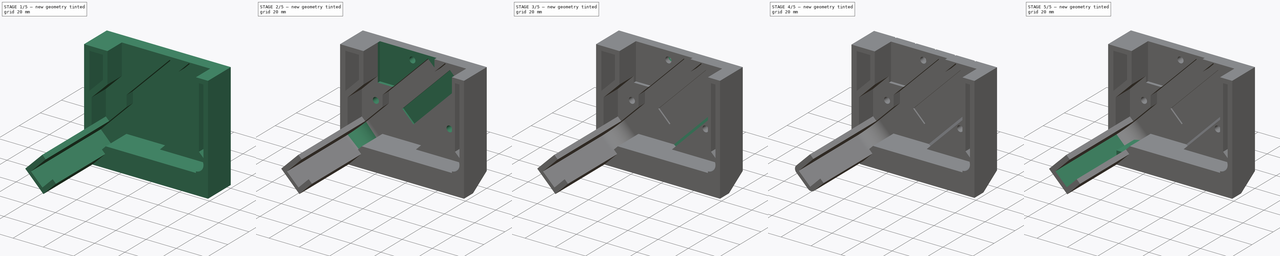
[diagram: build sequence overview — one tinted view per stage of 5, left to right]
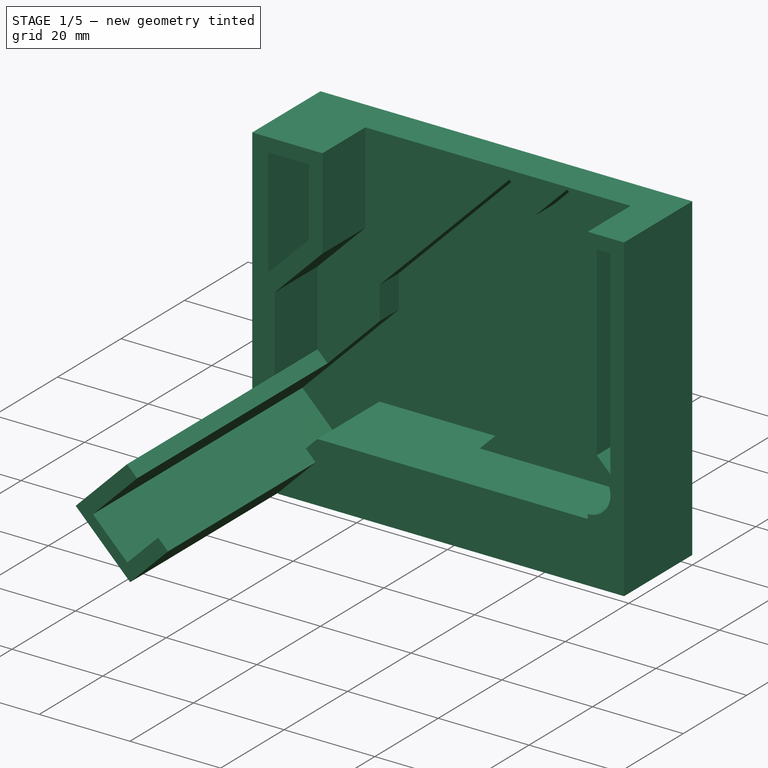
[diagram: stage 1 of 5 — iso view after this stage's code; geometry added in this stage tinted green]
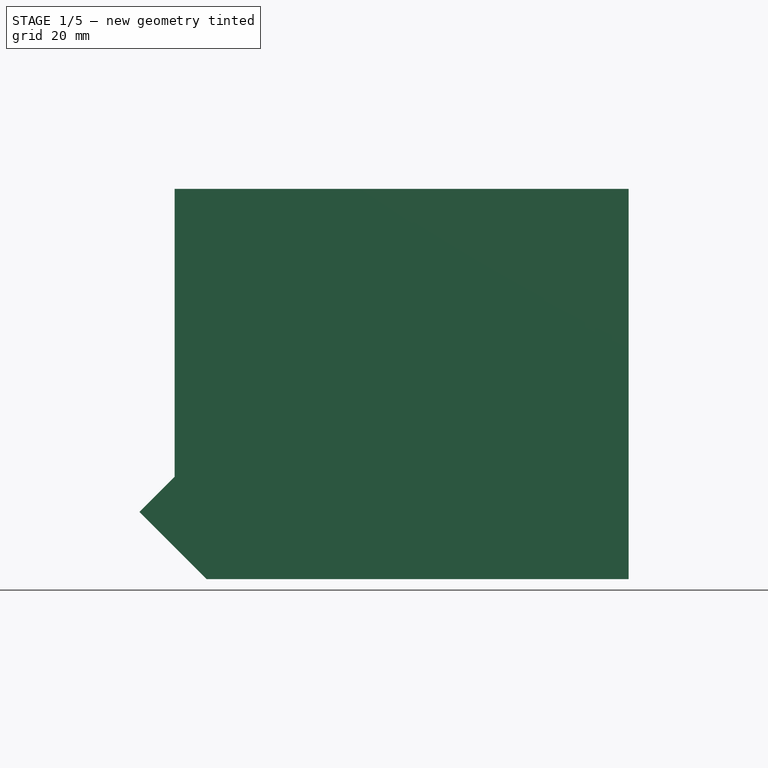
[diagram: stage 1 of 5 — front view after this stage's code; geometry added in this stage tinted green]
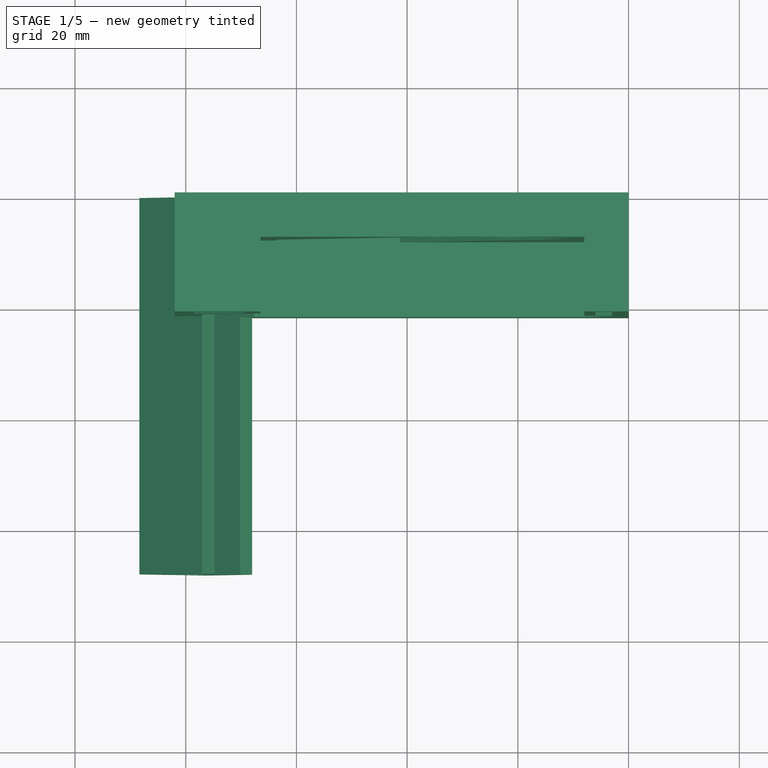
[diagram: stage 1 of 5 — top view after this stage's code; geometry added in this stage tinted green]
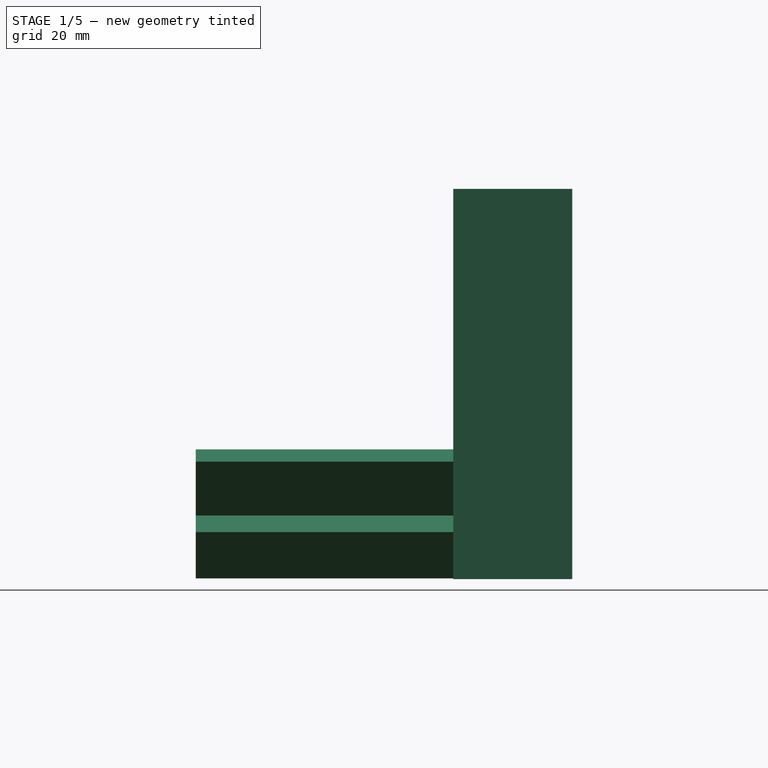
[diagram: stage 1 of 5 — right view after this stage's code; geometry added in this stage tinted green]
FCSTD DOCUMENT  (FreeCAD 0.17R13662 (Git))
Label: extruder_cap_v2.1
License: CreativeCommons Attribution-ShareAlike
LicenseURL: http://creativecommons.org/licenses/by-sa/4.0/
objects: Sketcher::SketchObject×13, PartDesign::Pocket×12, PartDesign::Chamfer×4, PartDesign::Fillet×3, PartDesign::Pad×2, Part::FeaturePython×1, PartDesign::Body×1
note: 50 computed .brp shape members not serialized (recipe doc carries the construction recipe); baked Part::Feature solids carry a one-line shape summary decoded from their .brp

FEATURE [Sketcher::SketchObject] Sketch
  MapMode = 5
  Placement = pos=(0,0,0) rot=(1,0,0;1.5708rad)
  Support = -> [XZ_Plane]
  sketch-geometry (6):
    g0: LineSegment StartX=-82 StartY=0 StartZ=0 EndX=-82 EndY=-52 EndZ=0
    g1: LineSegment StartX=-82 StartY=-52 StartZ=0 EndX=-88.364 EndY=-58.364 EndZ=0
    g2: LineSegment StartX=-88.364 StartY=-58.364 StartZ=0 EndX=-76.2279 EndY=-70.5 EndZ=0
    g3: LineSegment StartX=-76.2279 StartY=-70.5 StartZ=0 EndX=0 EndY=-70.5 EndZ=0
    g4: LineSegment StartX=0 StartY=-70.5 StartZ=0 EndX=0 EndY=0 EndZ=0
    g5: LineSegment StartX=0 StartY=0 StartZ=0 EndX=-82 EndY=0 EndZ=0
  constraints (17):
    c: Coincident(g0,g1)
    c: Coincident(g1,g2)
    c: Coincident(g2,g3)
    c: Coincident(g3,g4)
    c: Coincident(g4,g5)
    c: Coincident(g0,g5)
    c: Coincident(g4,g-1)
    c: Vertical(g4)
    c: Vertical(g0)
    c: Horizontal(g3)
    c: Horizontal(g5)
    c: Angle(g1) = -2.35619
    c: Perpendicular(g1,g2)
    c: DistanceY(g4,g4) = 70.5
    c: DistanceX(g5,g5) = 82
    c: DistanceY(g0,g0) = 52
    c: Distance(g1) = 9
FEATURE [PartDesign::Pad] Pad
  Length = 68
  Length2 = 100
  Placement = pos=(0,0,0) rot=(1,0,0;1.5708rad)
  Profile = -> Sketch
  Type = 0
FEATURE [Sketcher::SketchObject] Sketch001
  MapMode = 5
  Placement = pos=(0,-68,0) rot=(1,0,0;1.5708rad)
  Support = -> [Pad]
  sketch-geometry (12):
    g0: LineSegment StartX=-84.579 StartY=-59.0152 StartZ=0 EndX=-63.3657 EndY=-37.802 EndZ=0
    g1: LineSegment StartX=-63.3657 StartY=-37.802 StartZ=0 EndX=-63.3657 EndY=-30.552 EndZ=0
    g2: LineSegment StartX=-63.3657 StartY=-30.552 StartZ=0 EndX=-34.7279 EndY=-1.91421 EndZ=0
    g3: LineSegment StartX=-34.7279 StartY=-1.91421 StartZ=0 EndX=-29.0711 EndY=-7.57107 EndZ=0
    g4: LineSegment StartX=-29.0711 StartY=-7.57107 StartZ=0 EndX=-22 EndY=-0.5 EndZ=0
    g5: LineSegment StartX=-22 StartY=-0.5 StartZ=0 EndX=-8.91852 EndY=-13.5815 EndZ=0
    g6: LineSegment StartX=-8.91852 StartY=-13.5815 StartZ=0 EndX=-15.9896 EndY=-20.6525 EndZ=0
    g7: LineSegment StartX=-15.9896 StartY=-20.6525 StartZ=0 EndX=-10.3327 EndY=-26.3094 EndZ=0
    g8: LineSegment StartX=-10.3327 StartY=-26.3094 StartZ=0 EndX=-41.2687 EndY=-57.2453 EndZ=0
    g9: LineSegment StartX=-41.2687 StartY=-57.2453 StartZ=0 EndX=-67.6062 EndY=-57.2453 EndZ=0
    g10: LineSegment StartX=-67.6062 StartY=-57.2453 StartZ=0 EndX=-76.9776 EndY=-66.6166 EndZ=0
    g11: LineSegment StartX=-76.9776 StartY=-66.6166 StartZ=0 EndX=-84.579 EndY=-59.0152 EndZ=0
  constraints (36):
    c: Coincident(g0,g1)
    c: Coincident(g1,g2)
    c: Coincident(g2,g3)
    c: Coincident(g3,g4)
    c: Coincident(g4,g5)
    c: Coincident(g5,g6)
    c: Coincident(g6,g7)
    c: Coincident(g7,g8)
    c: Coincident(g8,g9)
    c: Coincident(g9,g10)
    c: Coincident(g10,g11)
    c: Coincident(g0,g11)
    c: Vertical(g1)
    c: Parallel(g10,g0)
    c: Parallel(g0,g2)
    c: Parallel(g2,g4)
    c: Parallel(g4,g6)
    c: Parallel(g6,g8)
    c: Horizontal(g9)
    c: Parallel(g5,g3)
    c: Parallel(g3,g7)
    c: Parallel(g7,g11)
    c: DistanceX(g4) = -22
    c: DistanceY(g4) = -0.5
    c: Perpendicular(g4,g5)
    c: Angle(g5) = -0.785398
    c: Distance(g5) = 18.5
    c: Distance(g4) = 10
    c: Equal(g6,g4)
    c: Equal(g3,g7)
    c: Distance(g7) = 8
    c: Distance(g2) = 40.5
    c: Distance(g8) = 43.75
    c: DistanceY(g1,g1) = 7.25
    c: Distance(g0) = 30
    c: Distance(g11) = 10.75
FEATURE [PartDesign::Pocket] Pocket
  BaseFeature = -> Pad
  Length = 66
  Length2 = 100
  Placement = pos=(0,0,0) rot=(1,0,0;1.5708rad)
  Profile = -> Sketch001
  Type = 0
FEATURE [Sketcher::SketchObject] Sketch002
  MapMode = 5
  Placement = pos=(0,-68,0) rot=(1,0,0;1.5708rad)
  Support = -> [Pocket]
  sketch-geometry (9):
    g0: LineSegment StartX=-82 StartY=-52 StartZ=0 EndX=-77.0503 EndY=-47.0503 EndZ=0
    g1: LineSegment StartX=-77.0503 StartY=-47.0503 StartZ=0 EndX=-74.7522 EndY=-49.3483 EndZ=0
    g2: LineSegment StartX=-74.7522 StartY=-49.3483 StartZ=0 EndX=-70.3128 EndY=-59.7166 EndZ=0
    g3: LineSegment StartX=0 StartY=0 StartZ=0 EndX=-82 EndY=0 EndZ=0
    g4: LineSegment StartX=-82 StartY=0 StartZ=0 EndX=-82 EndY=-52 EndZ=0
    g5: LineSegment StartX=-70.3128 StartY=-59.7166 StartZ=0 EndX=-68.0147 EndY=-62.0147 EndZ=0
    g6: LineSegment StartX=-68.0147 StartY=-62.0147 StartZ=0 EndX=-76.5 EndY=-70.5 EndZ=0
    g7: LineSegment StartX=-76.5 StartY=-70.5 StartZ=0 EndX=0 EndY=-70.5 EndZ=0
    g8: LineSegment StartX=0 StartY=-70.5 StartZ=0 EndX=0 EndY=0 EndZ=0
  constraints (26):
    c: Coincident(g0,g1)
    c: Coincident(g1,g2)
    c: Coincident(g3,g4)
    c: Coincident(g4,g0)
    c: Coincident(g5,g6)
    c: Coincident(g6,g7)
    c: Coincident(g7,g8)
    c: Coincident(g3,g8)
    c: Coincident(g3,g-1)
    c: Horizontal(g3)
    c: Horizontal(g7)
    c: Coincident(g2,g5)
    c: Vertical(g4)
    c: Vertical(g8)
    c: DistanceX(g3,g3) = 82
    c: DistanceY(g4,g4) = 52
    c: Angle(g0,g4) = 0.785398
    c: Distance(g0) = 7
    c: Perpendicular(g0,g1)
    c: Distance(g1) = 3.25
    c: Parallel(g5,g1)
    c: Perpendicular(g6,g5)
    c: DistanceY(g8,g8) = 70.5
    c: DistanceX(g7,g7) = 76.5
    c: Distance(g6) = 12
    c: Distance(g5) = 3.25
FEATURE [PartDesign::Pocket] Pocket001
  BaseFeature = -> Pocket
  Length = 46.5
  Length2 = 100
  Placement = pos=(0,0,0) rot=(1,0,0;1.5708rad)
  Profile = -> Sketch002
  Type = 0
FEATURE [Sketcher::SketchObject] Sketch003
  ExternalGeometry = -> [Pocket001]
  MapMode = 5
  Placement = pos=(0,-21.5,0) rot=(1,0,0;1.5708rad)
  Support = -> [Pocket001]
  sketch-geometry (19):
    g0: LineSegment StartX=-66.5 StartY=0 StartZ=0 EndX=-66.5 EndY=-20 EndZ=0
    g1: LineSegment StartX=-66.5 StartY=-20 StartZ=0 EndX=-77.0503 EndY=-30.5503 EndZ=0
    g2: LineSegment StartX=-77.0503 StartY=-30.5503 StartZ=0 EndX=-77.0503 EndY=-47.0503 EndZ=0
    g3: LineSegment StartX=-77.0503 StartY=-47.0503 StartZ=0 EndX=-74.8321 EndY=-49.2684 EndZ=0
    g4: LineSegment StartX=-74.8321 StartY=-49.2684 StartZ=0 EndX=-70.1952 EndY=-59.8343 EndZ=0
    g5: LineSegment StartX=-70.1952 StartY=-59.8343 StartZ=0 EndX=-67.6062 EndY=-57.2453 EndZ=0
    g6: LineSegment StartX=-67.6062 StartY=-57.2453 StartZ=0 EndX=-8 EndY=-57.2453 EndZ=0
    g7: LineSegment StartX=-8 StartY=-57.2453 StartZ=0 EndX=-8 EndY=-56.2453 EndZ=0
    g8: LineSegment StartX=-8 StartY=-46.2453 StartZ=0 EndX=-8 EndY=0 EndZ=0
    g9: LineSegment StartX=-8 StartY=0 StartZ=0 EndX=-66.5 EndY=0 EndZ=0
    g10: ArcOfCircle CenterX=-8 CenterY=-51.2453 CenterZ=0 NormalX=0 NormalY=0 NormalZ=1 AngleXU=0 Radius=5 StartAngle=4.71239 EndAngle=7.85398
    g11: LineSegment StartX=-6 StartY=-3 StartZ=0 EndX=-3 EndY=-3 EndZ=0
    g12: LineSegment StartX=-3 StartY=-3 StartZ=0 EndX=-3 EndY=-47 EndZ=0
    g13: LineSegment StartX=-3 StartY=-47 StartZ=0 EndX=-6 EndY=-44 EndZ=0
    g14: LineSegment StartX=-6 StartY=-44 StartZ=0 EndX=-6 EndY=-3 EndZ=0
    g15: LineSegment StartX=-78.5 StartY=-3 StartZ=0 EndX=-69.5 EndY=-3 EndZ=0
    g16: LineSegment StartX=-69.5 StartY=-3 StartZ=0 EndX=-69.5 EndY=-18 EndZ=0
    g17: LineSegment StartX=-69.5 StartY=-18 StartZ=0 EndX=-78.5 EndY=-27 EndZ=0
    g18: LineSegment StartX=-78.5 StartY=-27 StartZ=0 EndX=-78.5 EndY=-3 EndZ=0
  constraints (55):
    c: Coincident(g0,g1)
    c: Coincident(g1,g2)
    c: Coincident(g2,g3)
    c: Coincident(g3,g4)
    c: Coincident(g4,g5)
    c: Coincident(g6,g7)
    c: Coincident(g8,g9)
    c: Vertical(g5,g6)
    c: Coincident(g0,g9)
    c: Horizontal(g9)
    c: PointOnObject(g8,g-1)
    c: Vertical(g8)
    c: Vertical(g0)
    c: Vertical(g7)
    c: Vertical(g2)
    c: DistanceX(g8) = -8
    c: DistanceX(g9,g9) = 58.5
    c: DistanceY(g0,g0) = 20
    c: Coincident(g5,g6)
    c: Coincident(g5,g-5)
    c: Coincident(g4,g-5)
    c: Coincident(g3,g-3)
    c: Coincident(g2,g-3)
    c: Angle(g1) = -2.35619
    c: Coincident(g7,g10)
    c: Coincident(g8,g10)
    c: Horizontal(g6)
    c: PointOnObject(g10,g7)
    c: DistanceY(g7,g7) = 1
    c: PointOnObject(g7,g8)
    c: Radius(g10) = 5
    c: Coincident(g11,g12)
    c: Coincident(g12,g13)
    c: Coincident(g13,g14)
    c: Coincident(g14,g11)
    c: Horizontal(g11)
    c: Vertical(g12)
    c: Vertical(g14)
    c: Coincident(g15,g16)
    c: Coincident(g16,g17)
    c: Coincident(g17,g18)
    c: Coincident(g18,g15)
    c: Horizontal(g15)
    c: Vertical(g16)
    c: Vertical(g18)
    c: DistanceX(g11) = -3
    c: DistanceY(g11) = -3
    c: DistanceX(g11,g11) = 3
    c: DistanceY(g12,g12) = 44
    c: DistanceY(g14,g14) = 41
    c: DistanceX(g15,g0) = 3
    c: DistanceY(g15,g0) = 3
    c: DistanceX(g15,g15) = 9
    c: DistanceY(g18,g18) = 24
    c: DistanceY(g16,g16) = 15
FEATURE [PartDesign::Pocket] Pocket002
  BaseFeature = -> Pocket001
  Length = 13.5
  Length2 = 100
  Placement = pos=(0,0,0) rot=(1,0,0;1.5708rad)
  Profile = -> Sketch003
  Type = 0
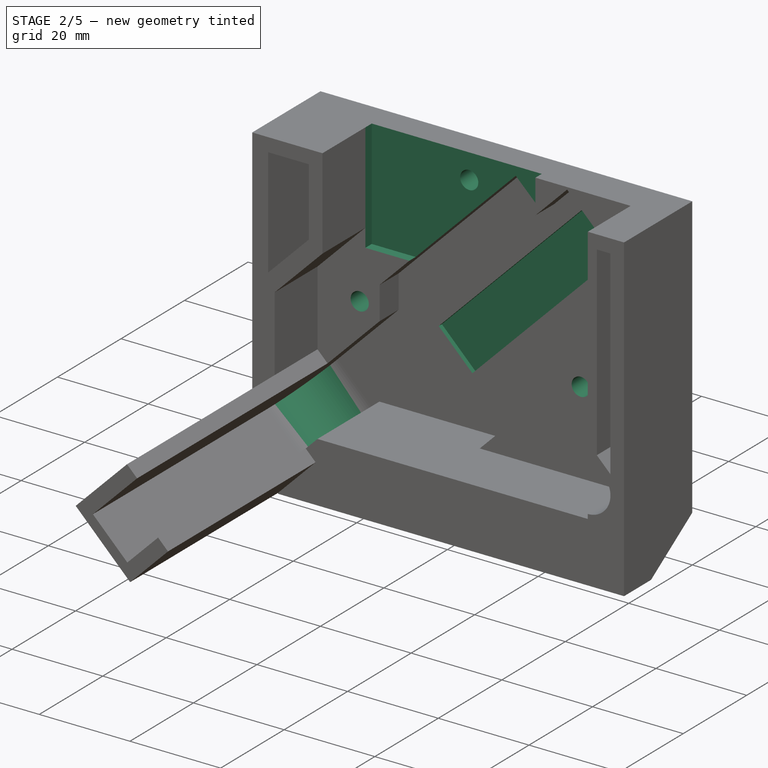
[diagram: stage 2 of 5 — iso view after this stage's code; geometry added in this stage tinted green]
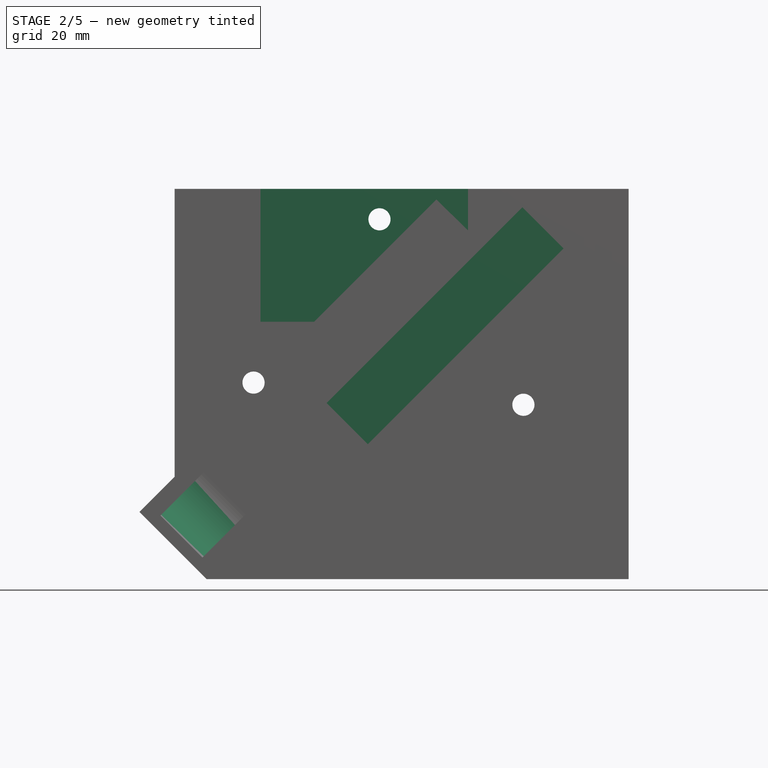
[diagram: stage 2 of 5 — front view after this stage's code; geometry added in this stage tinted green]
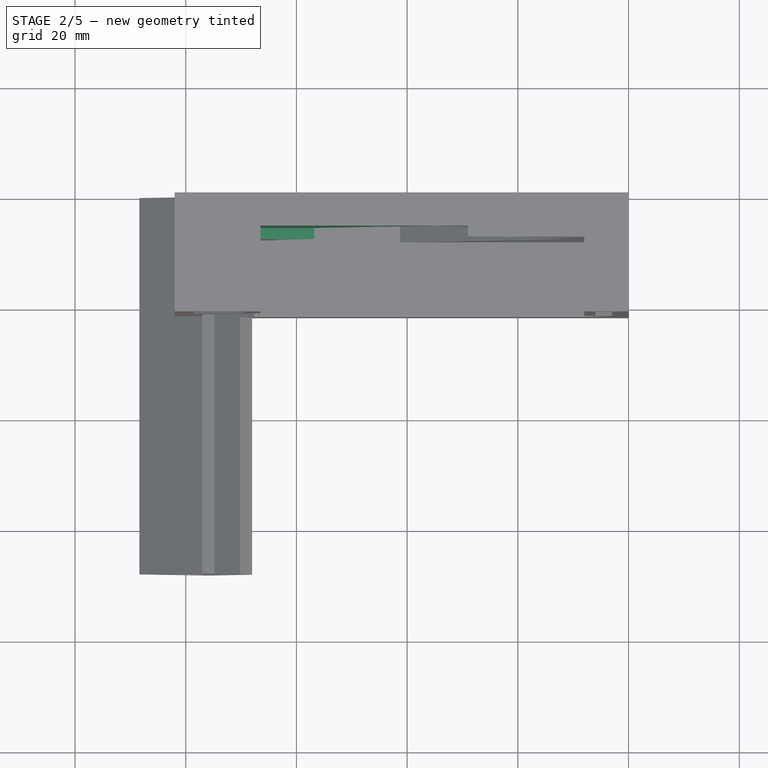
[diagram: stage 2 of 5 — top view after this stage's code; geometry added in this stage tinted green]
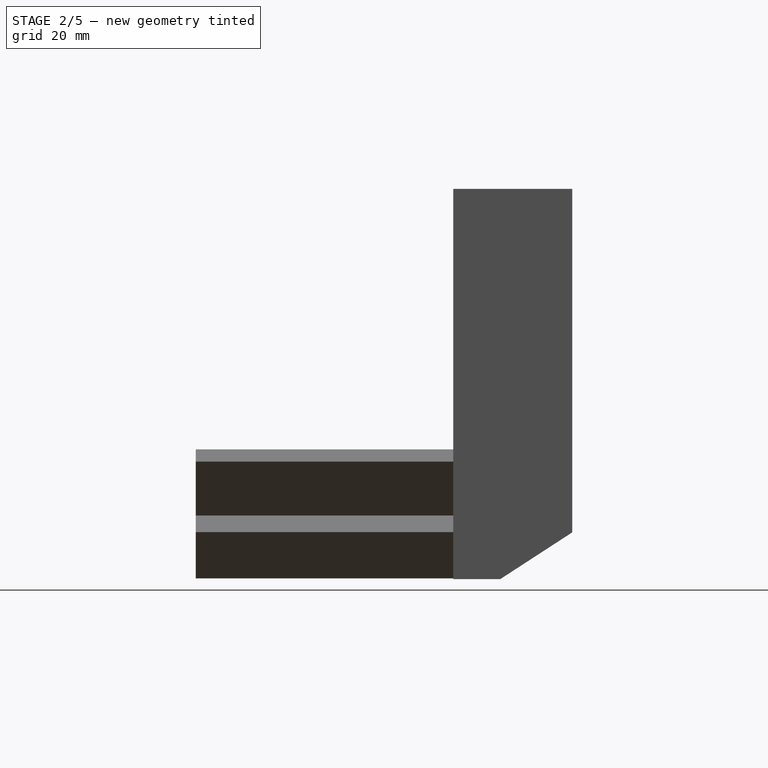
[diagram: stage 2 of 5 — right view after this stage's code; geometry added in this stage tinted green]
FEATURE [Sketcher::SketchObject] Sketch004
  MapMode = 5
  Placement = pos=(0,-8,0) rot=(1,0,0;1.5708rad)
  Support = -> [Pocket002]
  sketch-geometry (4):
    g0: LineSegment StartX=-66.5 StartY=0 StartZ=0 EndX=-29 EndY=0 EndZ=0
    g1: LineSegment StartX=-29 StartY=0 StartZ=0 EndX=-29 EndY=-24 EndZ=0
    g2: LineSegment StartX=-29 StartY=-24 StartZ=0 EndX=-66.5 EndY=-24 EndZ=0
    g3: LineSegment StartX=-66.5 StartY=-24 StartZ=0 EndX=-66.5 EndY=0 EndZ=0
  constraints (12):
    c: Coincident(g0,g1)
    c: Coincident(g1,g2)
    c: Coincident(g2,g3)
    c: Coincident(g3,g0)
    c: Horizontal(g0)
    c: Horizontal(g2)
    c: Vertical(g1)
    c: Vertical(g3)
    c: PointOnObject(g0,g-1)
    c: DistanceX(g0) = -29
    c: DistanceX(g0,g0) = 37.5
    c: DistanceY(g1,g1) = 24
FEATURE [PartDesign::Pocket] Pocket003
  BaseFeature = -> Pocket002
  Length = 2
  Length2 = 100
  Placement = pos=(0,0,0) rot=(1,0,0;1.5708rad)
  Profile = -> Sketch004
  Type = 0
FEATURE [Sketcher::SketchObject] Sketch005
  MapMode = 5
  Placement = pos=(0,0,0) rot=(-1,0,0;1.5708rad)
  Support = -> [Pocket003]
  sketch-geometry (3):
    g0: Circle CenterX=-67.75 CenterY=35 CenterZ=0 NormalX=0 NormalY=0 NormalZ=1 AngleXU=0 Radius=2
    g1: Circle CenterX=-19 CenterY=39 CenterZ=0 NormalX=0 NormalY=0 NormalZ=1 AngleXU=0 Radius=2
    g2: Circle CenterX=-45 CenterY=5.5 CenterZ=0 NormalX=0 NormalY=0 NormalZ=1 AngleXU=0 Radius=2
  constraints (9):
    c: DistanceX(g1) = -19
    c: DistanceY(g1) = 39
    c: DistanceX(g2) = -45
    c: DistanceY(g2) = 5.5
    c: DistanceX(g0) = -67.75
    c: DistanceY(g0) = 35
    c: Radius(g0) = 2
    c: Equal(g0,g1)
    c: Equal(g0,g2)
FEATURE [PartDesign::Pocket] Pocket004
  BaseFeature = -> Pocket003
  Length = 5
  Length2 = 100
  Placement = pos=(0,0,0) rot=(1,0,0;1.5708rad)
  Profile = -> Sketch005
  Type = 1
FEATURE [Sketcher::SketchObject] Sketch006
  ExternalGeometry = -> [Pocket004]
  MapMode = 5
  Placement = pos=(0,-2,0) rot=(1,0,0;1.5708rad)
  Support = -> [Pocket004]
  sketch-geometry (4):
    g0: LineSegment StartX=-19.1716 StartY=-3.32843 StartZ=0 EndX=-11.747 EndY=-10.753 EndZ=0
    g1: LineSegment StartX=-11.747 StartY=-10.753 StartZ=0 EndX=-47.1023 EndY=-46.1084 EndZ=0
    g2: LineSegment StartX=-47.1023 StartY=-46.1084 StartZ=0 EndX=-54.5269 EndY=-38.6838 EndZ=0
    g3: LineSegment StartX=-54.5269 StartY=-38.6838 StartZ=0 EndX=-19.1716 EndY=-3.32843 EndZ=0
  constraints (12):
    c: Coincident(g0,g1)
    c: Coincident(g1,g2)
    c: Coincident(g2,g3)
    c: Coincident(g0,g3)
    c: Angle(g2) = 2.35619
    c: Perpendicular(g2,g1)
    c: Perpendicular(g3,g2)
    c: Perpendicular(g0,g3)
    c: PointOnObject(g0,g-3)
    c: Distance(g0,g-3) = 4
    c: Distance(g0,g-3) = 4
    c: Distance(g1) = 50
FEATURE [PartDesign::Pocket] Pocket005
  BaseFeature = -> Pocket004
  Length = 1
  Length2 = 100
  Placement = pos=(0,0,0) rot=(1,0,0;1.5708rad)
  Profile = -> Sketch006
  Type = 0
FEATURE [PartDesign::Fillet] Fillet
  Base = -> Pocket005 [Edge113]
  BaseFeature = -> Pocket005
  Placement = pos=(0,0,0) rot=(1,0,0;1.5708rad)
  Radius = 11
FEATURE [Sketcher::SketchObject] Sketch007
  ExternalGeometry = -> [Fillet]
  MapMode = 5
  Placement = pos=(0,0,0) rot=(0.707107,0,0.707107;3.14159rad)
  Support = -> [Fillet]
  sketch-geometry (3):
    g0: LineSegment StartX=-70.5 StartY=13 StartZ=0 EndX=-62.0577 EndY=0 EndZ=0
    g1: LineSegment StartX=-62.0577 StartY=0 StartZ=0 EndX=-70.5 EndY=0 EndZ=0
    g2: LineSegment StartX=-70.5 StartY=0 StartZ=0 EndX=-70.5 EndY=13 EndZ=0
  constraints (8):
    c: Coincident(g0,g1)
    c: Coincident(g1,g2)
    c: Coincident(g0,g2)
    c: Coincident(g1,g-3)
    c: Horizontal(g1)
    c: Vertical(g2)
    c: Angle(g2,g0) = 0.575959
    c: DistanceY(g2,g2) = 13
FEATURE [PartDesign::Pocket] Pocket006
  BaseFeature = -> Fillet
  Length = 5
  Length2 = 100
  Placement = pos=(0,0,0) rot=(1,0,0;1.5708rad)
  Profile = -> Sketch007
  Type = 1
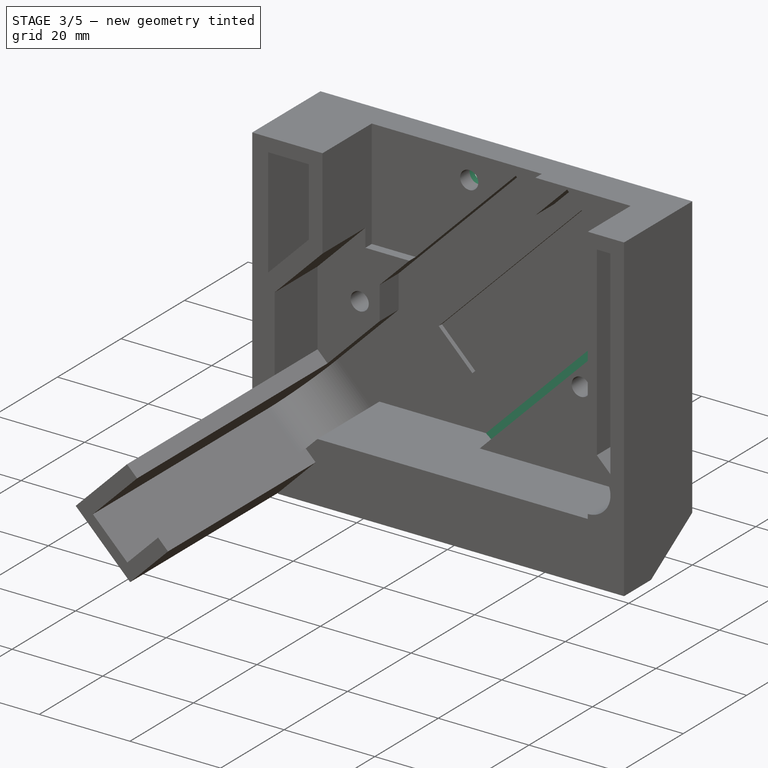
[diagram: stage 3 of 5 — iso view after this stage's code; geometry added in this stage tinted green]
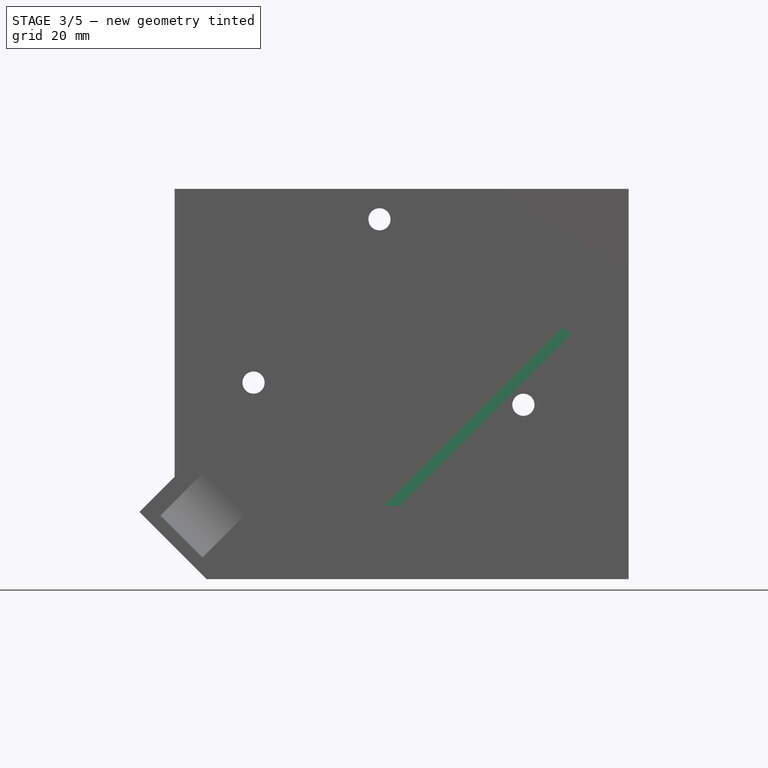
[diagram: stage 3 of 5 — front view after this stage's code; geometry added in this stage tinted green]
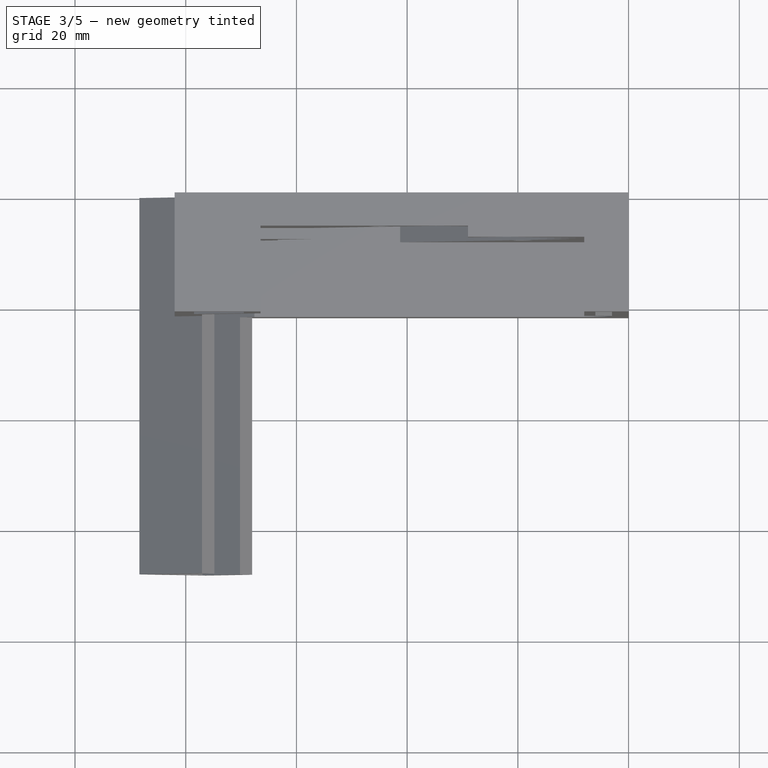
[diagram: stage 3 of 5 — top view after this stage's code; geometry added in this stage tinted green]
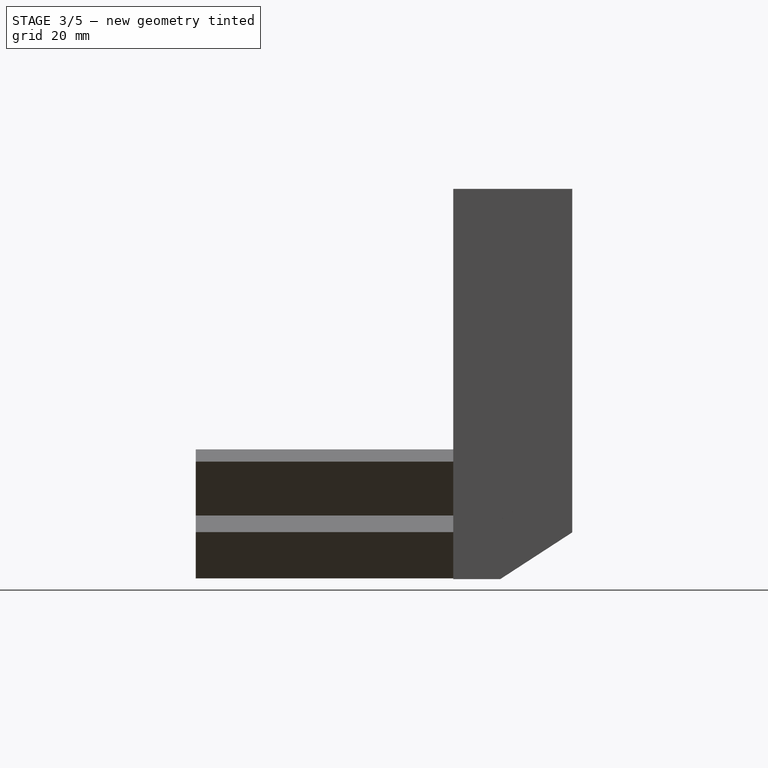
[diagram: stage 3 of 5 — right view after this stage's code; geometry added in this stage tinted green]
FEATURE [Sketcher::SketchObject] Sketch008
  MapMode = 5
  Placement = pos=(0,28.3463,-43.6494) rot=(1,0,0;3.71755rad)
  Support = -> [Pocket006]
  sketch-geometry (4):
    g0: LineSegment StartX=-74 StartY=51 StartZ=0 EndX=-2 EndY=51 EndZ=0
    g1: LineSegment StartX=-2 StartY=51 StartZ=0 EndX=-2 EndY=35 EndZ=0
    g2: LineSegment StartX=-2 StartY=35 StartZ=0 EndX=-74 EndY=35 EndZ=0
    g3: LineSegment StartX=-74 StartY=35 StartZ=0 EndX=-74 EndY=51 EndZ=0
  constraints (12):
    c: Coincident(g0,g1)
    c: Coincident(g1,g2)
    c: Coincident(g2,g3)
    c: Coincident(g3,g0)
    c: Horizontal(g0)
    c: Horizontal(g2)
    c: Vertical(g1)
    c: Vertical(g3)
    c: DistanceY(g1,g1) = 16
    c: DistanceX(g0,g0) = 72
    c: DistanceX(g1) = -2
    c: DistanceY(g1) = 35
FEATURE [PartDesign::Pocket] Pocket007
  BaseFeature = -> Pocket006
  Length = 1
  Length2 = 100
  Placement = pos=(0,0,0) rot=(1,0,0;1.5708rad)
  Profile = -> Sketch008
  Type = 0
FEATURE [Sketcher::SketchObject] Sketch009
  MapMode = 5
  Placement = pos=(0,27.8016,-42.8108) rot=(1,0,0;3.71755rad)
  Support = -> [Pocket007]
  sketch-geometry (3):
    g0: Circle CenterX=-70 CenterY=41.5 CenterZ=0 NormalX=0 NormalY=0 NormalZ=1 AngleXU=0 Radius=2.35
    g1: Circle CenterX=-6 CenterY=41.5 CenterZ=0 NormalX=0 NormalY=0 NormalZ=1 AngleXU=0 Radius=2.35
    g2: LineSegment [constr] StartX=-70 StartY=41.5 StartZ=0 EndX=-6 EndY=41.5 EndZ=0
  constraints (8):
    c: Coincident(g1,g2)
    c: Coincident(g0,g2)
    c: Horizontal(g2)
    c: DistanceX(g1) = -6
    c: Radius(g0) = 2.35
    c: Equal(g0,g1)
    c: DistanceY(g1) = 41.5
    c: DistanceX(g2,g2) = 64
FEATURE [PartDesign::Pocket] Pocket008
  BaseFeature = -> Pocket007
  Length = 8
  Length2 = 100
  Placement = pos=(0,0,0) rot=(1,0,0;1.5708rad)
  Profile = -> Sketch009
  Type = 0
FEATURE [Sketcher::SketchObject] Sketch011
  MapMode = 5
  Placement = pos=(0,0,0) rot=(-1,0,0;1.5708rad)
  Support = -> [Pocket008]
  sketch-geometry (3):
    g0: Circle CenterX=-67.75 CenterY=35 CenterZ=0 NormalX=0 NormalY=0 NormalZ=1 AngleXU=0 Radius=3.5
    g1: Circle CenterX=-45 CenterY=5.5 CenterZ=0 NormalX=0 NormalY=0 NormalZ=1 AngleXU=0 Radius=3.5
    g2: Circle CenterX=-19 CenterY=39 CenterZ=0 NormalX=0 NormalY=0 NormalZ=1 AngleXU=0 Radius=3.5
  constraints (9):
    c: Radius(g0) = 3.5
    c: Equal(g0,g2)
    c: Equal(g0,g1)
    c: DistanceX(g2) = -19
    c: DistanceY(g2) = 39
    c: DistanceX(g0) = -67.75
    c: DistanceY(g0) = 35
    c: DistanceX(g1) = -45
    c: DistanceY(g1) = 5.5
FEATURE [PartDesign::Chamfer] Chamfer
  Base = -> Pocket008 [Edge12]
  BaseFeature = -> Pocket008
  Placement = pos=(0,0,0) rot=(1,0,0;1.5708rad)
  Size = 2
FEATURE [PartDesign::Pocket] Pocket009
  BaseFeature = -> Chamfer
  Length = 3
  Length2 = 100
  Placement = pos=(0,0,0) rot=(1,0,0;1.5708rad)
  Profile = -> Sketch011
  Type = 0
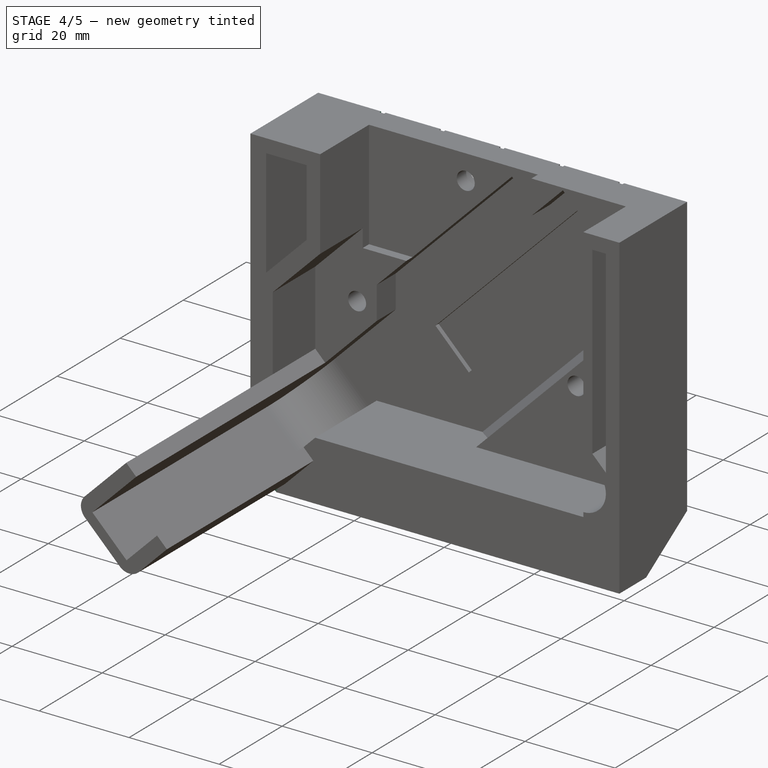
[diagram: stage 4 of 5 — iso view after this stage's code; geometry added in this stage tinted green]
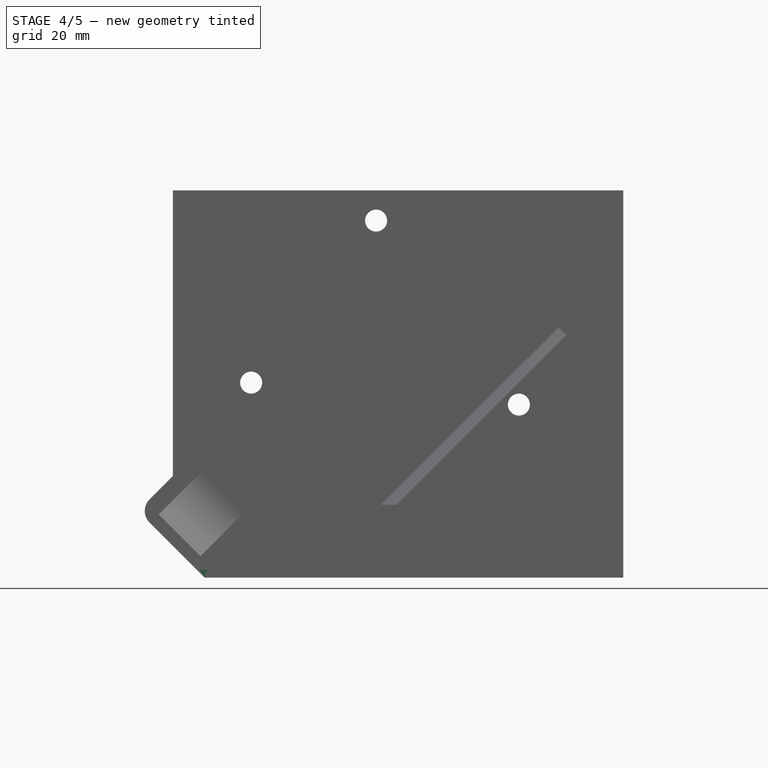
[diagram: stage 4 of 5 — front view after this stage's code; geometry added in this stage tinted green]
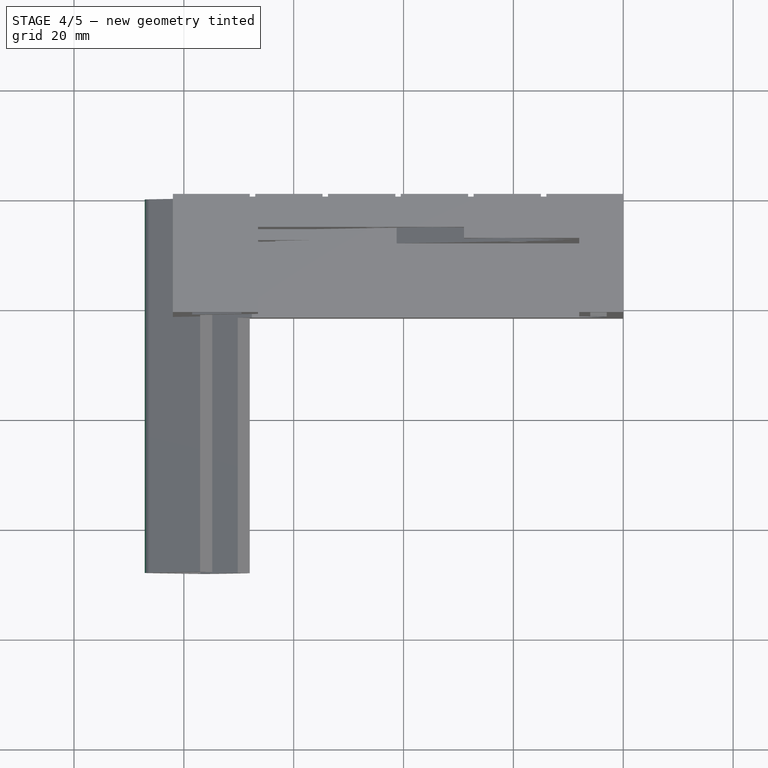
[diagram: stage 4 of 5 — top view after this stage's code; geometry added in this stage tinted green]
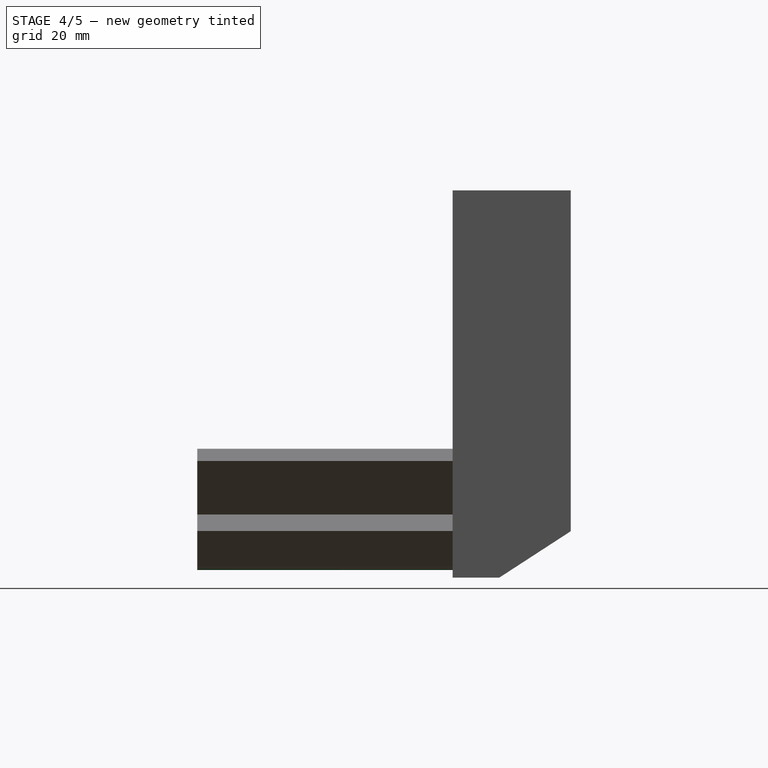
[diagram: stage 4 of 5 — right view after this stage's code; geometry added in this stage tinted green]
FEATURE [Sketcher::SketchObject] Sketch012
  ExternalGeometry = -> [Pocket009]
  MapMode = 5
  Placement = pos=(0,0,0) rot=(-1,0,0;1.5708rad)
  Support = -> [Pocket009]
  sketch-geometry (24):
    g0: LineSegment StartX=-68 StartY=0 StartZ=0 EndX=-67 EndY=0 EndZ=0
    g1: LineSegment StartX=-67 StartY=0 StartZ=0 EndX=-67 EndY=63 EndZ=0
    g2: LineSegment StartX=-67 StartY=63 StartZ=0 EndX=-68 EndY=63 EndZ=0
    g3: LineSegment StartX=-68 StartY=63 StartZ=0 EndX=-68 EndY=0 EndZ=0
    g4: LineSegment StartX=-54.75 StartY=0 StartZ=0 EndX=-53.75 EndY=0 EndZ=0
    g5: LineSegment StartX=-53.75 StartY=0 StartZ=0 EndX=-53.75 EndY=63 EndZ=0
    g6: LineSegment StartX=-53.75 StartY=63 StartZ=0 EndX=-54.75 EndY=63 EndZ=0
    g7: LineSegment StartX=-54.75 StartY=63 StartZ=0 EndX=-54.75 EndY=0 EndZ=0
    g8: LineSegment StartX=-41.5 StartY=0 StartZ=0 EndX=-40.5 EndY=0 EndZ=0
    g9: LineSegment StartX=-40.5 StartY=0 StartZ=0 EndX=-40.5 EndY=63 EndZ=0
    g10: LineSegment StartX=-40.5 StartY=63 StartZ=0 EndX=-41.5 EndY=63 EndZ=0
    g11: LineSegment StartX=-41.5 StartY=63 StartZ=0 EndX=-41.5 EndY=0 EndZ=0
    g12: LineSegment StartX=-28.25 StartY=0 StartZ=0 EndX=-27.25 EndY=0 EndZ=0
    g13: LineSegment StartX=-27.25 StartY=0 StartZ=0 EndX=-27.25 EndY=63 EndZ=0
    g14: LineSegment StartX=-27.25 StartY=63 StartZ=0 EndX=-28.25 EndY=63 EndZ=0
    g15: LineSegment StartX=-28.25 StartY=63 StartZ=0 EndX=-28.25 EndY=0 EndZ=0
    g16: LineSegment [constr] StartX=-67 StartY=0 StartZ=0 EndX=-54.75 EndY=0 EndZ=0
    g17: LineSegment [constr] StartX=-53.75 StartY=0 StartZ=0 EndX=-41.5 EndY=0 EndZ=0
    g18: LineSegment [constr] StartX=-40.5 StartY=0 StartZ=0 EndX=-28.25 EndY=0 EndZ=0
    g19: LineSegment StartX=-15 StartY=0 StartZ=0 EndX=-14 EndY=0 EndZ=0
    g20: LineSegment StartX=-14 StartY=0 StartZ=0 EndX=-14 EndY=63 EndZ=0
    g21: LineSegment StartX=-14 StartY=63 StartZ=0 EndX=-15 EndY=63 EndZ=0
    g22: LineSegment StartX=-15 StartY=63 StartZ=0 EndX=-15 EndY=0 EndZ=0
    g23: LineSegment [constr] StartX=-27.25 StartY=0 StartZ=0 EndX=-15 EndY=0 EndZ=0
  constraints (68):
    c: Coincident(g0,g1)
    c: Coincident(g1,g2)
    c: Coincident(g2,g3)
    c: Coincident(g3,g0)
    c: Horizontal(g0)
    c: Horizontal(g2)
    c: Vertical(g1)
    c: Vertical(g3)
    c: Coincident(g4,g5)
    c: Coincident(g5,g6)
    c: Coincident(g6,g7)
    c: Coincident(g7,g4)
    c: Horizontal(g4)
    c: Horizontal(g6)
    c: Vertical(g5)
    c: Vertical(g7)
    c: Coincident(g8,g9)
    c: Coincident(g9,g10)
    c: Coincident(g10,g11)
    c: Coincident(g11,g8)
    c: Horizontal(g8)
    c: Horizontal(g10)
    c: Vertical(g9)
    c: Vertical(g11)
    c: Coincident(g12,g13)
    c: Coincident(g13,g14)
    c: Coincident(g14,g15)
    c: Coincident(g15,g12)
    c: Horizontal(g12)
    c: Horizontal(g14)
    c: Vertical(g13)
    c: Vertical(g15)
    c: PointOnObject(g12,g-1)
    c: PointOnObject(g8,g-1)
    c: PointOnObject(g4,g-1)
    c: PointOnObject(g0,g-1)
    c: Equal(g0,g4)
    c: Equal(g4,g8)
    c: Equal(g8,g12)
    c: DistanceX(g12,g12) = 1
    c: Coincident(g0,g16)
    c: Coincident(g4,g16)
    c: Coincident(g4,g17)
    c: Coincident(g8,g17)
    c: Coincident(g8,g18)
    c: Coincident(g12,g18)
    c: Equal(g18,g17)
    c: Equal(g17,g16)
    c: Coincident(g19,g20)
    c: Coincident(g20,g21)
    c: Coincident(g21,g22)
    c: Coincident(g22,g19)
    c: Horizontal(g19)
    c: Horizontal(g21)
    c: Vertical(g20)
    c: Vertical(g22)
    c: Equal(g22,g13)
    c: Equal(g15,g9)
    c: Equal(g9,g5)
    c: Equal(g5,g1)
    c: Equal(g21,g14)
    c: PointOnObject(g19,g-1)
    c: Coincident(g19,g23)
    c: Coincident(g12,g23)
    c: Equal(g23,g18)
    c: DistanceY(g20,g20) = 63
    c: DistanceX(g19) = -14
    c: DistanceX(g-3,g0) = 14
FEATURE [PartDesign::Pocket] Pocket010
  BaseFeature = -> Pocket009
  Length = 0.5
  Length2 = 100
  Placement = pos=(0,0,0) rot=(1,0,0;1.5708rad)
  Profile = -> Sketch012
  Type = 0
FEATURE [PartDesign::Pad] Pad001
  BaseFeature = -> Pocket010
  Length = 72
  Length2 = 100
  Placement = pos=(0,0,0) rot=(1,0,0;1.5708rad)
  Profile = -> Pocket010 [Face57]
  Type = 0
FEATURE [Sketcher::SketchObject] Sketch013
  ExternalGeometry = -> [Pad001]
  MapMode = 5
  Placement = pos=(0,28.3463,-43.6494) rot=(1,0,0;3.71755rad)
  Support = -> [Pad001]
  sketch-geometry (2):
    g0: Circle CenterX=-70 CenterY=41.5 CenterZ=0 NormalX=0 NormalY=0 NormalZ=1 AngleXU=0 Radius=2.35
    g1: Circle CenterX=-6 CenterY=41.5 CenterZ=0 NormalX=0 NormalY=0 NormalZ=1 AngleXU=0 Radius=2.35
  constraints (4):
    c: Coincident(g0,g-3)
    c: Coincident(g1,g-4)
    c: Equal(g1,g0)
    c: Equal(g0,g-3)
FEATURE [PartDesign::Pocket] Pocket011
  BaseFeature = -> Pad001
  Length = 2
  Length2 = 100
  Placement = pos=(0,0,0) rot=(1,0,0;1.5708rad)
  Profile = -> Sketch013
  Refine = true
  Type = 0
FEATURE [PartDesign::Chamfer] Chamfer001
  Base = -> Pocket011 [Edge248,Edge249]
  BaseFeature = -> Pocket011
  Placement = pos=(0,0,0) rot=(1,0,0;1.5708rad)
  Size = 1
FEATURE [PartDesign::Fillet] Fillet001
  Base = -> Chamfer001 [Edge37,Edge39]
  BaseFeature = -> Chamfer001
  Placement = pos=(0,0,0) rot=(1,0,0;1.5708rad)
  Radius = 3
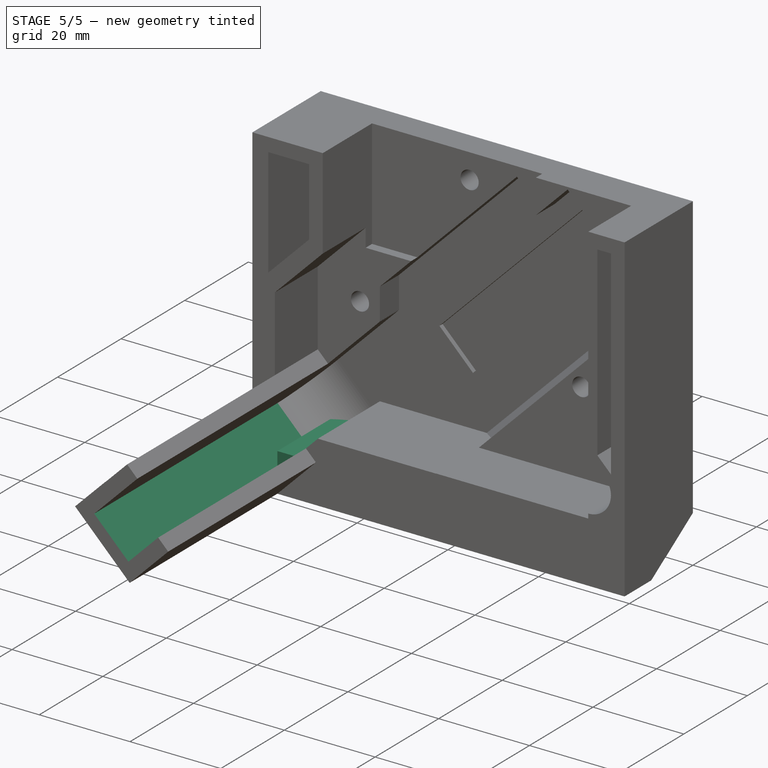
[diagram: stage 5 of 5 — iso view after this stage's code; geometry added in this stage tinted green]
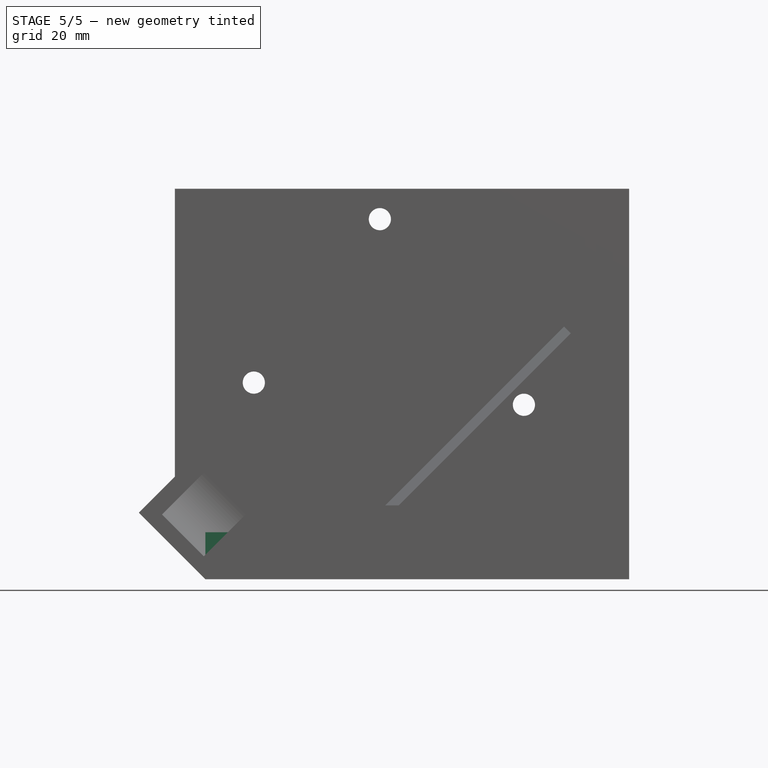
[diagram: stage 5 of 5 — front view after this stage's code; geometry added in this stage tinted green]
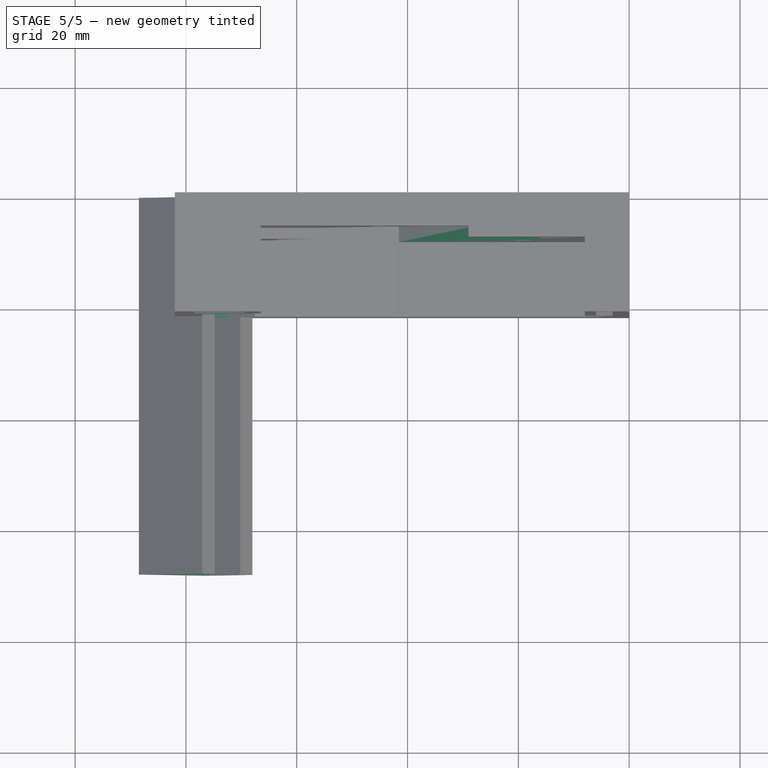
[diagram: stage 5 of 5 — top view after this stage's code; geometry added in this stage tinted green]
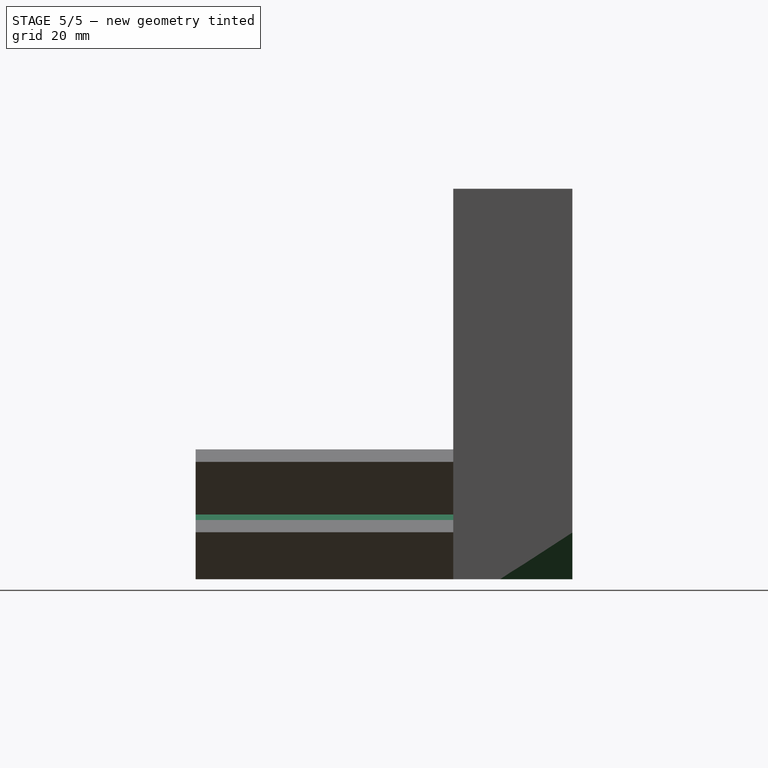
[diagram: stage 5 of 5 — right view after this stage's code; geometry added in this stage tinted green]
FEATURE [Part::FeaturePython] extruder_cap_v1_01  # a2plus imported part (geometry in sourceFile) (typed FeaturePython)
  Placement = pos=(0,0,0) rot=(1,0,0;1.5708rad)
  fixedPosition = true
  sourceFile = <userpath>/Projects/taz-redgum/production_parts/printed_parts/extruder_cap/extruder_cap_v1.fcstd
  timeLastImport = 1.555e+09
  updateColors = true
FEATURE [PartDesign::Fillet] Fillet002
  Base = -> Fillet001 [Edge51,Edge5]
  BaseFeature = -> Fillet001
  Placement = pos=(0,0,0) rot=(1,0,0;1.5708rad)
  Radius = 3
FEATURE [PartDesign::Chamfer] Chamfer002
  Base = -> Fillet002 [Edge242,Edge199,Edge243]
  BaseFeature = -> Fillet002
  Placement = pos=(0,0,0) rot=(1,0,0;1.5708rad)
  Size = 1.49
FEATURE [PartDesign::Chamfer] Chamfer003
  Base = -> Chamfer002 [Edge199,Edge125]
  BaseFeature = -> Chamfer002
  Placement = pos=(0,0,0) rot=(1,0,0;1.5708rad)
  Size = 8
FEATURE [PartDesign::Body] Body
  Group = -> [Sketch,Pad,Sketch001,Pocket,Sketch002,Pocket001,Sketch003,Pocket002,Sketch004,Pocket003,Sketch005,Pocket004,Sketch006,Pocket005,Fillet,Sketch007,Pocket006,Sketch008,Pocket007,Sketch009,Pocket008,Sketch011,Chamfer,Pocket009,Sketch012,Pocket010,Pad001,Sketch013,Pocket011,Chamfer001,Fillet001,Fillet002,Chamfer002,Chamfer003]
  Origin = -> Origin
  Tip = -> Chamfer003
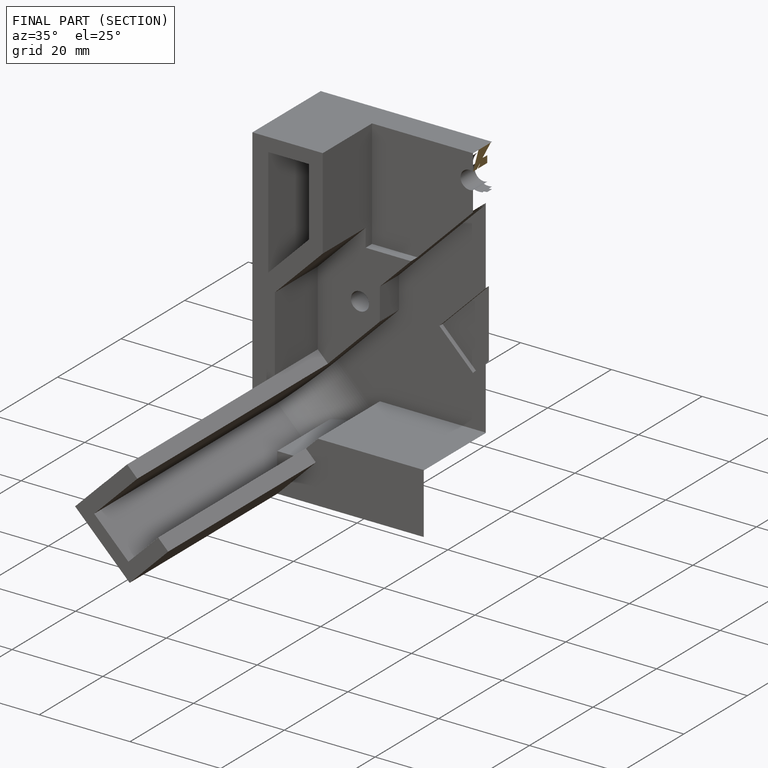
[diagram: finished part — half-section view (interior)]
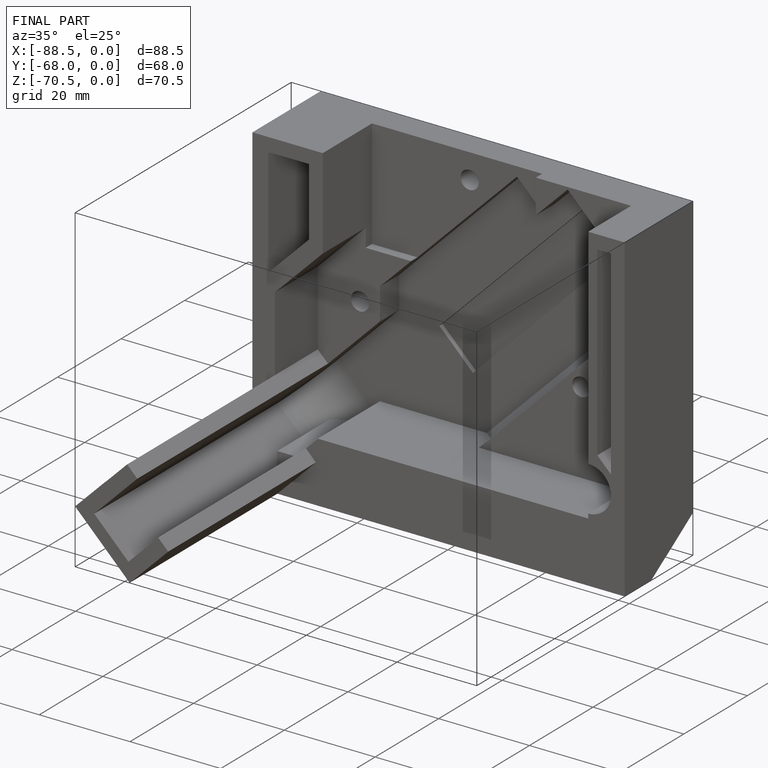
[diagram: finished part — iso view with bounding-box wireframe]
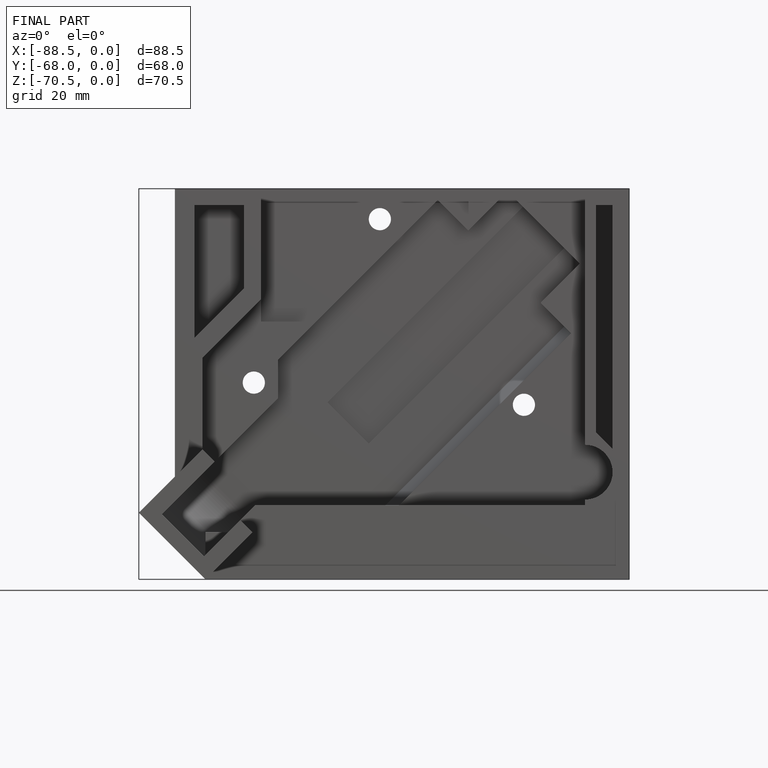
[diagram: finished part — front view with bounding-box wireframe]
